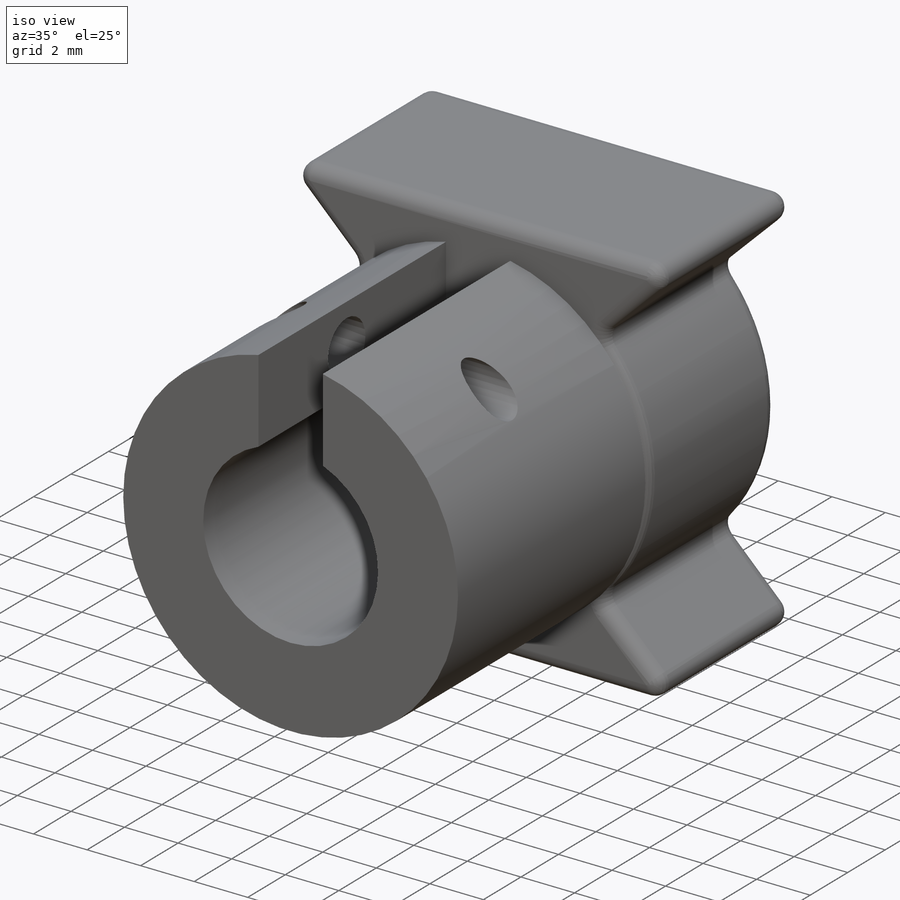
[diagram: iso view]
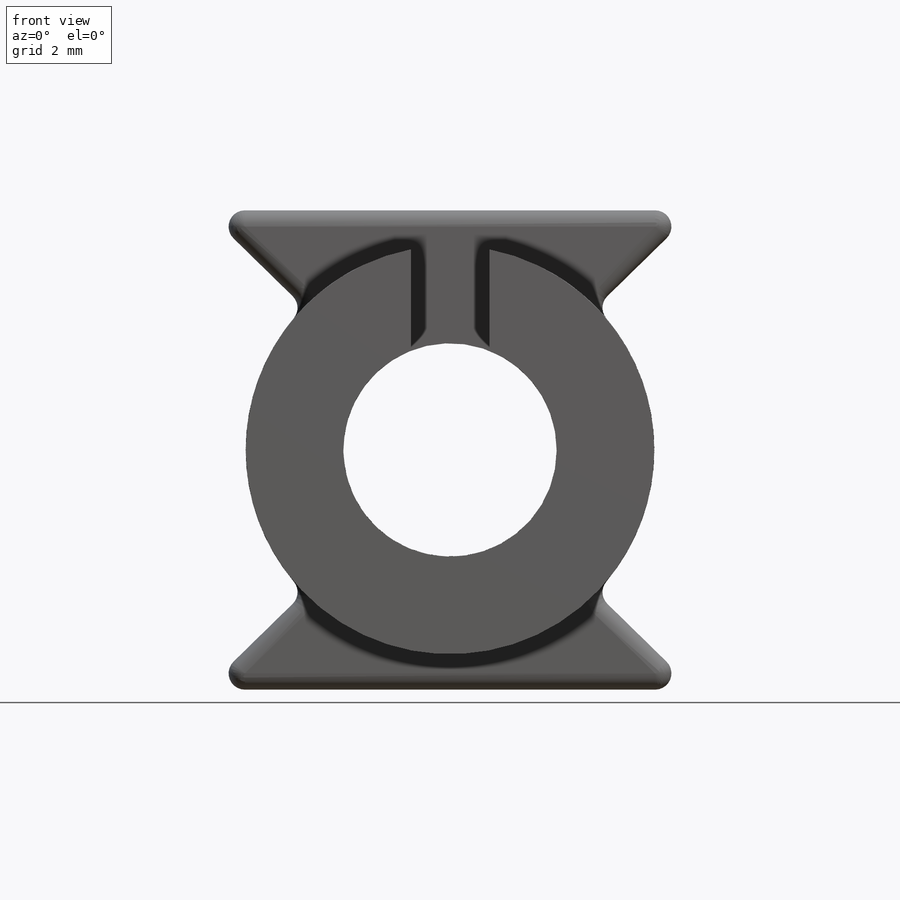
[diagram: front view]
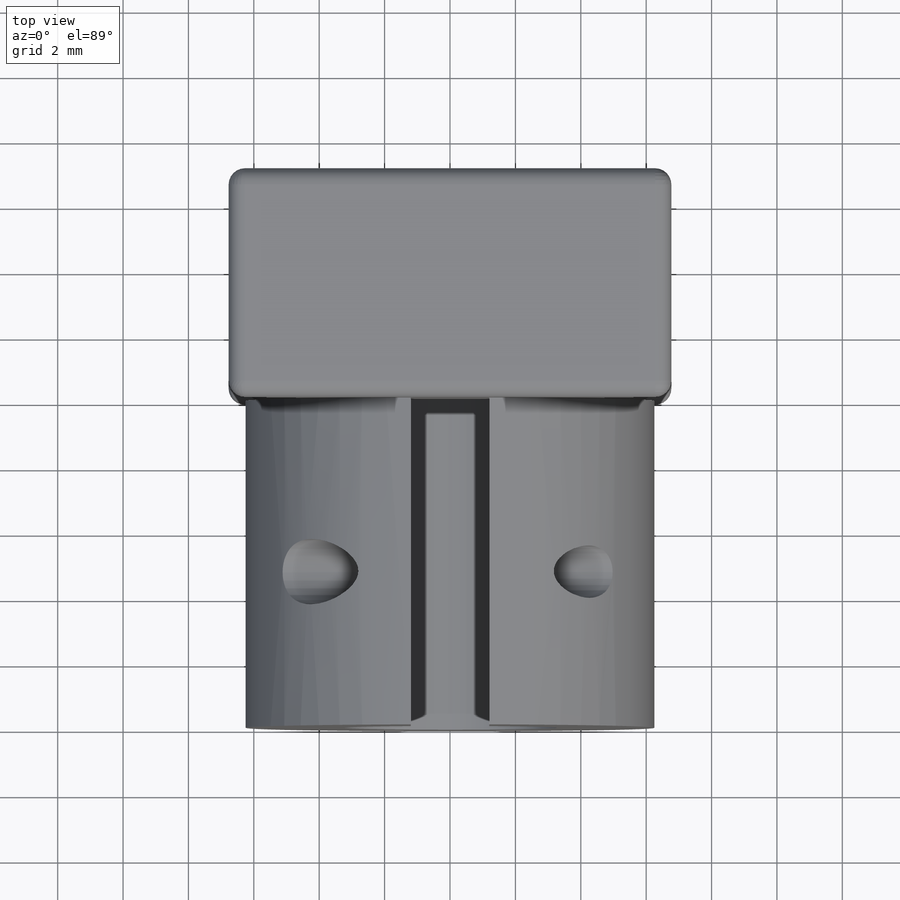
[diagram: top view]
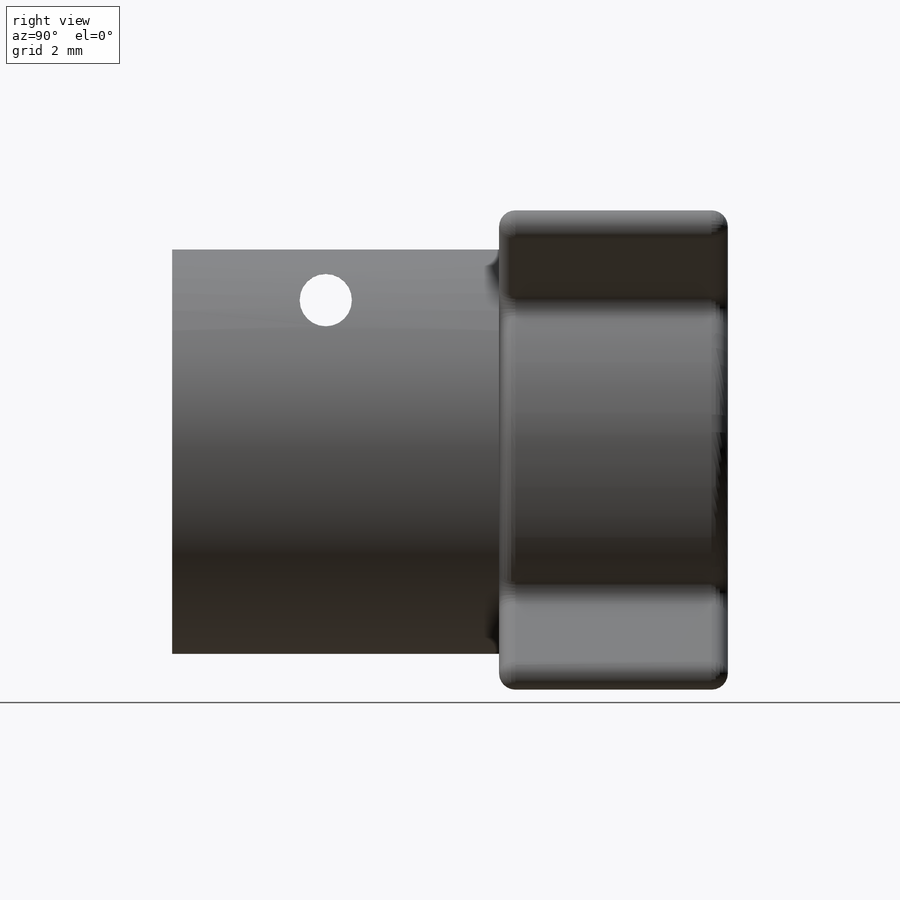
[diagram: right view]
SOLIDWORKS PART (.sldprt)
format: sldprt  version: not decoded by parser v0  size: 311,808 bytes
history: native  units: mm
features: sketch x5, cut_extrude x3, extrude x2, material x1, fillet x1 (+13 scaffold rows collapsed)
feature tree (25):
  scaffold x13  (default folders/planes/origin — collapsed)
  material  "Material <not specified>"
  sketch  "Sketch1"  dims[D1=12.5mm D2=6.5278mm]
  extrude  "Boss-Extrude1"  Depth=10mm
  sketch  "Sketch2"  dims[D1=15.0mm]
  extrude  "Boss-Extrude2"  Depth=7mm
  sketch  "Sketch3"  dims[D1=2.4mm]
  cut_extrude  "Cut-Extrude1"  Depth=10mm
  sketch  "Sketch4"  dims[D2=2.0mm D1=5.3mm]
  cut_extrude  "Cut-Extrude2"  [1 undecoded]
  sketch  "Sketch5"  dims[D2=1.6mm D1=0.0mm]
  cut_extrude  "m2x.4 thread"  Depth=9.5mm
  fillet  "Fillet2"  Radius=0.5mm
decode coverage: 10 of 11 modeling features carry decoded parameters
note: 1 parameter value undecoded
note: suppression state not decoded; provenance and decode notes live in map.json
